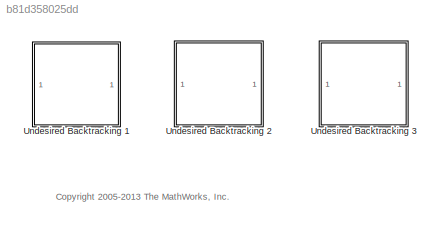
MODEL slx_b81d358025dd
KIND model
CONFIG AbsTol = auto
CONFIG EnableMultiTasking = on
CONFIG FixedStep = .2
CONFIG MaxStep = auto
CONFIG MinStep = auto
CONFIG RelTol = 1e-3
CONFIG SampleTimeConstraint = Unconstrained
CONFIG Solver = FixedStepDiscrete
CONFIG SolverName = FixedStepDiscrete
CONFIG StartTime = 0.0
CONFIG StopTime = 1
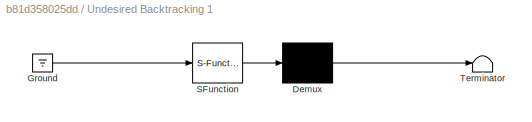
BLOCK [SubSystem] Undesired Backtracking 1
  ErrorFcn = Stateflow.Translate.translate
  PermitHierarchicalResolution = ExplicitOnly
  Ports = []
  RequestExecContextInheritance = off
  SFBlockType = Chart
  TreatAsAtomicUnit = on
  Variant = off
BLOCK [Demux] Undesired Backtracking 1/ Demux 
  Outputs = 1
  Ports = [1, 1]
BLOCK [Ground] Undesired Backtracking 1/ Ground 
BLOCK [S-Function] Undesired Backtracking 1/ SFunction 
  EnableBusSupport = off
  FunctionName = sf_sfun
  PortCounts = [1 1]
  Ports = [1, 1]
  SFcnIsStateOwnerBlock = off
  SFunctionDeploymentMode = off
  Tag = Stateflow S-Function sf_backup_undesirable 3
BLOCK [Terminator] Undesired Backtracking 1/ Terminator 
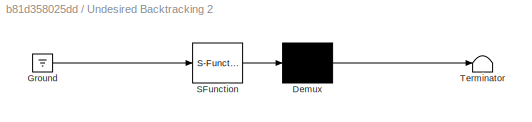
BLOCK [SubSystem] Undesired Backtracking 2
  ErrorFcn = Stateflow.Translate.translate
  PermitHierarchicalResolution = ExplicitOnly
  Ports = []
  RTWFcnNameOpts = Use subsystem name
  RTWFileNameOpts = Use subsystem name
  RequestExecContextInheritance = off
  SFBlockType = Chart
  TreatAsAtomicUnit = on
  Variant = off
BLOCK [Demux] Undesired Backtracking 2/ Demux 
  Outputs = 1
  Ports = [1, 1]
BLOCK [Ground] Undesired Backtracking 2/ Ground 
BLOCK [S-Function] Undesired Backtracking 2/ SFunction 
  EnableBusSupport = off
  FunctionName = sf_sfun
  PortCounts = [1 1]
  Ports = [1, 1]
  SFcnIsStateOwnerBlock = off
  SFunctionDeploymentMode = off
  Tag = Stateflow S-Function sf_backup_undesirable 23
BLOCK [Terminator] Undesired Backtracking 2/ Terminator 
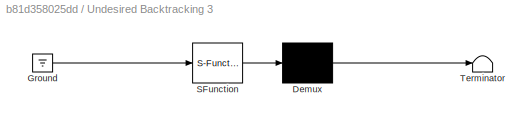
BLOCK [SubSystem] Undesired Backtracking 3
  ErrorFcn = Stateflow.Translate.translate
  PermitHierarchicalResolution = ExplicitOnly
  Ports = []
  RTWFcnNameOpts = Use subsystem name
  RTWFileNameOpts = Use subsystem name
  RequestExecContextInheritance = off
  SFBlockType = Chart
  TreatAsAtomicUnit = on
  Variant = off
BLOCK [Demux] Undesired Backtracking 3/ Demux 
  Outputs = 1
  Ports = [1, 1]
BLOCK [Ground] Undesired Backtracking 3/ Ground 
BLOCK [S-Function] Undesired Backtracking 3/ SFunction 
  EnableBusSupport = off
  FunctionName = sf_sfun
  PortCounts = [1 1]
  Ports = [1, 1]
  SFcnIsStateOwnerBlock = off
  SFunctionDeploymentMode = off
  Tag = Stateflow S-Function sf_backup_undesirable 1
BLOCK [Terminator] Undesired Backtracking 3/ Terminator 
ANNOTATION (root): <copyright redacted>
CHART Undesired
Backtracking 3 states=4 transitions=19
  STATE_LABEL 'BAD'
  STATE_LABEL 'The function BAD shows an example of backtracking which can lead to\ninefficient run-time behavior. A cursory examination of the flowgraph\nto the right might lead one to believe that it represents the following\nrun-time behavior:\n\nif ( (foo1() || foo2()) &&\n      (foo3() || foo4()) &&\n      (foo5() || foo6()) &&\n      foo7() ) {\n        action();\n}\n\nSuppose that all the functions fooN return true E...<+368ch>'
  STATE_LABEL '[foo1()]'
  STATE_LABEL '[foo2()]'
  STATE_LABEL '[foo3()]'
  STATE_LABEL '[foo4()]'
  STATE_LABEL '[foo6()]'
  STATE_LABEL '[foo5()]'
  STATE_LABEL '[foo7()]\n{action();}'
  STATE_LABEL 'The function BAD shows an example of backtracking which can lead to\ninefficient run-time behavior. A cursory examination of the flowgraph\nto the right might lead one to believe that it represents the following\nrun-time behavior:\n\nif ( (foo1() || foo2()) &&\n      (foo3() || foo4()) &&\n      (foo5() || foo6()) &&\n      foo7() ) {\n        action();\n}\n\nSuppose that all the functions fooN return true E...<+368ch>'
  STATE_LABEL 'GOOD'
  STATE_LABEL 'The function GOOD shows a way in which you can obtain the runtime\nsemantics below, while still achieving good computation and code generation\nefficiency. By providing default paths to terminal junctions, the generated\ncode actually resembles the pseudo code below:\n\nif ( (foo1() || foo2()) &&\n      (foo3() || foo4()) &&\n      (foo5() || foo6()) &&\n      foo7() ) {\n        action();\n}\n\nTherefore it ...<+189ch>'
  STATE_LABEL '[foo1()]'
  STATE_LABEL '[foo2()]'
  STATE_LABEL '[foo3()]'
  STATE_LABEL '[foo4()]'
  STATE_LABEL '[foo6()]'
  STATE_LABEL '[foo5()]'
  STATE_LABEL '[foo7()]\n{action();}'
  STATE_LABEL 'The function GOOD shows a way in which you can obtain the runtime\nsemantics below, while still achieving good computation and code generation\nefficiency. By providing default paths to terminal junctions, the generated\ncode actually resembles the pseudo code below:\n\nif ( (foo1() || foo2()) &&\n      (foo3() || foo4()) &&\n      (foo5() || foo6()) &&\n      foo7() ) {\n        action();\n}\n\nTherefore it ...<+189ch>'
CHART Undesired
Backtracking 1 states=4 transitions=9
  STATE_LABEL 'BAD'
  STATE_LABEL "The function 'BAD' shows an example of backtracking semantics\nwhich may not be expected or desired. When conditions c1, c2\nand c3 are true but c4 is false, the backtracking semantics\nresults in multiple executions of the condition action 'a3++'.\n\n1. c1 is checked and is true\n2. Therefore c3 is checked. It is true, therfore 'a3++' is execued\n3. c4 is then checked. It is false. Now execution backtra...<+304ch>"
  STATE_LABEL '[c1]'
  STATE_LABEL '[c2]'
  STATE_LABEL '[c3]{a3++;}'
  STATE_LABEL '[c4]'
  STATE_LABEL "The function 'BAD' shows an example of backtracking semantics\nwhich may not be expected or desired. When conditions c1, c2\nand c3 are true but c4 is false, the backtracking semantics\nresults in multiple executions of the condition action 'a3++'.\n\n1. c1 is checked and is true\n2. Therefore c3 is checked. It is true, therfore 'a3++' is execued\n3. c4 is then checked. It is false. Now execution backtra...<+304ch>"
  STATE_LABEL 'GOOD'
  STATE_LABEL "In contrast, in this function, there are no junctions which have\nmultiple paths leading to them. This prevents us from backtracking\nand hence the action 'a3++' is executed exactly once.\n\nNotice that the semantics of GOOD and BAD are quite different."
  STATE_LABEL '[c1 || c2]'
  STATE_LABEL '[c3]{a3++;}'
  STATE_LABEL '[c4]'
  STATE_LABEL "In contrast, in this function, there are no junctions which have\nmultiple paths leading to them. This prevents us from backtracking\nand hence the action 'a3++' is executed exactly once.\n\nNotice that the semantics of GOOD and BAD are quite different."
CHART Undesired
Backtracking 2 states=4 transitions=17
  STATE_LABEL 'BAD'
  STATE_LABEL 'The function BAD shows an example of backtracking semantics which\nmay not be expected or desired. A cursory look at the flow graph might\nlead one to believe that it represents the following pseudo code:\n\nif (u1) {\n    if_u1_true;\n} else {\n    if _u1_false;\n}\n\nif (u2) {\n     if_u2_true;\n}\n\nHowever, in the case when u1 is true but u2 is false, both the actions\nif_u1_true and if_u1_false are executed...<+249ch>'
  STATE_LABEL '[u1]'
  STATE_LABEL '{if_u1_true;}'
  STATE_LABEL '{if_u1_false;}'
  STATE_LABEL '[u2]'
  STATE_LABEL '{if_u2_true;}'
  STATE_LABEL 'The function BAD shows an example of backtracking semantics which\nmay not be expected or desired. A cursory look at the flow graph might\nlead one to believe that it represents the following pseudo code:\n\nif (u1) {\n    if_u1_true;\n} else {\n    if _u1_false;\n}\n\nif (u2) {\n     if_u2_true;\n}\n\nHowever, in the case when u1 is true but u2 is false, both the actions\nif_u1_true and if_u1_false are executed...<+249ch>'
  STATE_LABEL 'GOOD'
  STATE_LABEL 'The function GOOD shows how to avoid the problem with undesired\nbacktracking. The correct way to do it is to add a default transition to\na terminal junction. This prevents us from backtracking from u2 all\nthe way to if_u2_false. Instead, as soon as u2 is tried and is found to\nbe false, the execution flows to the terminal junction and stops. This\nmeans that we get the semantics shown in the pseudo ...<+11ch>'
  STATE_LABEL '[u1]'
  STATE_LABEL '{if_u1_true;}'
  STATE_LABEL '{if_u1_false;}'
  STATE_LABEL '[u2]'
  STATE_LABEL '{if_u2_true;}'
  STATE_LABEL 'The function GOOD shows how to avoid the problem with undesired\nbacktracking. The correct way to do it is to add a default transition to\na terminal junction. This prevents us from backtracking from u2 all\nthe way to if_u2_false. Instead, as soon as u2 is tried and is found to\nbe false, the execution flows to the terminal junction and stops. This\nmeans that we get the semantics shown in the pseudo ...<+11ch>'
